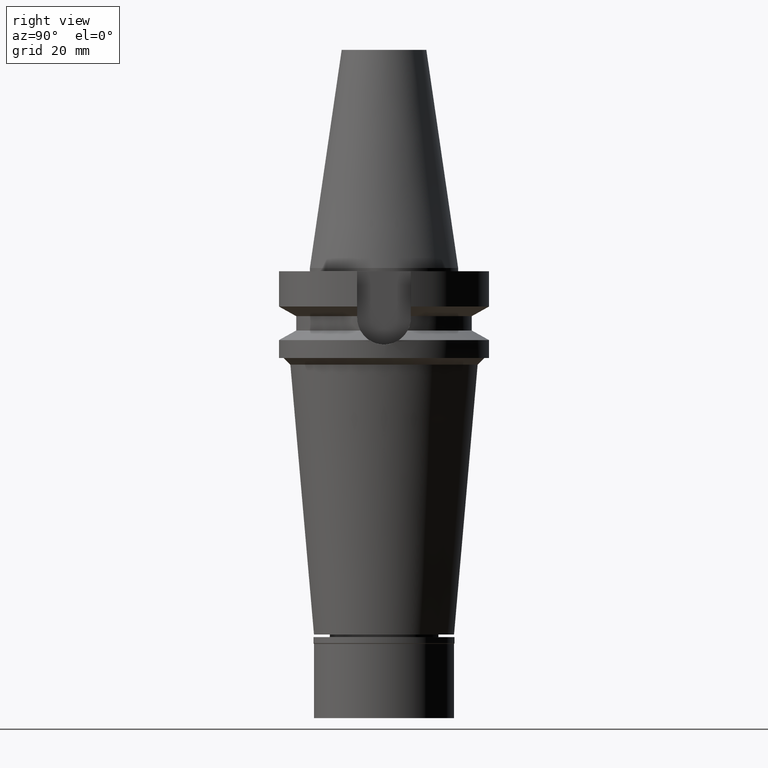
[diagram: clean part render]
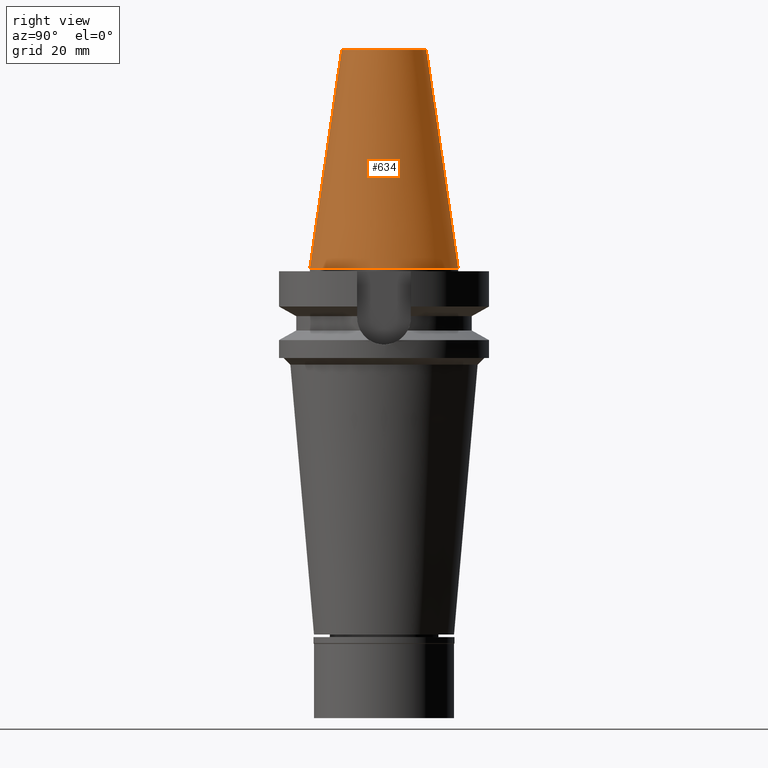
[diagram: same view with one face highlighted and labeled with its STEP entity id]
A machine part, right view. The second image highlights one B-rep face of the part: STEP entity #634.
In plain terms, the highlighted conical surface has half-angle 8.297 deg.
Its self-contained STEP definition (entity closure, byte-faithful):
#25 = VERTEX_POINT ( 'NONE', #2777 ) ;
#212 = DIRECTION ( 'NONE',  ( 0.0000000000000000000, 1.000000000000000000, 0.0000000000000000000 ) ) ;
#233 = VECTOR ( 'NONE', #883, 1000.000000000000114 ) ;
#395 = ORIENTED_EDGE ( 'NONE', *, *, #1185, .T. ) ;
#511 = AXIS2_PLACEMENT_3D ( 'NONE', #3073, #2361, #212 ) ;
#634 = ADVANCED_FACE ( 'NONE', ( #2387 ), #2047, .T. ) ;
#673 = DIRECTION ( 'NONE',  ( 0.0000000000000000000, 0.0000000000000000000, -1.000000000000000000 ) ) ;
#845 = ORIENTED_EDGE ( 'NONE', *, *, #1602, .F. ) ;
#849 = EDGE_CURVE ( 'NONE', #25, #1640, #979, .T. ) ;
#883 = DIRECTION ( 'NONE',  ( 0.0000000000000000000, 0.1443043893539925626, -0.9895333461855498891 ) ) ;
#906 = ORIENTED_EDGE ( 'NONE', *, *, #849, .T. ) ;
#918 = ORIENTED_EDGE ( 'NONE', *, *, #2571, .F. ) ;
#979 = LINE ( 'NONE', #2967, #2253 ) ;
#1114 = LINE ( 'NONE', #2595, #233 ) ;
#1184 = DIRECTION ( 'NONE',  ( 0.0000000000000000000, 0.0000000000000000000, -1.000000000000000000 ) ) ;
#1185 = EDGE_CURVE ( 'NONE', #1888, #25, #2420, .T. ) ;
#1585 = AXIS2_PLACEMENT_3D ( 'NONE', #1627, #1184, #1677 ) ;
#1602 = EDGE_CURVE ( 'NONE', #1888, #2949, #1114, .T. ) ;
#1627 = CARTESIAN_POINT ( 'NONE',  ( 0.0000000000000000000, 1.625106302469000024E-14, 32.70000000000000284 ) ) ;
#1640 = VERTEX_POINT ( 'NONE', #2376 ) ;
#1642 = DIRECTION ( 'NONE',  ( 0.0000000000000000000, 1.000000000000000000, 0.0000000000000000000 ) ) ;
#1677 = DIRECTION ( 'NONE',  ( 0.0000000000000000000, -1.000000000000000000, 0.0000000000000000000 ) ) ;
#1743 = AXIS2_PLACEMENT_3D ( 'NONE', #2924, #673, #1642 ) ;
#1777 = CIRCLE ( 'NONE', #511, 22.22500000000000142 ) ;
#1888 = VERTEX_POINT ( 'NONE', #2798 ) ;
#2011 = DIRECTION ( 'NONE',  ( 0.0000000000000000000, -0.1443043893539925626, -0.9895333461855498891 ) ) ;
#2047 = CONICAL_SURFACE ( 'NONE', #1585, 17.45633449714999941, 0.1448099680379422438 ) ;
#2150 = CARTESIAN_POINT ( 'NONE',  ( 0.0000000000000000000, 22.22500000000000142, 6.394884621841000123E-14 ) ) ;
#2253 = VECTOR ( 'NONE', #2011, 1000.000000000000114 ) ;
#2361 = DIRECTION ( 'NONE',  ( 0.0000000000000000000, 0.0000000000000000000, -1.000000000000000000 ) ) ;
#2376 = CARTESIAN_POINT ( 'NONE',  ( 0.0000000000000000000, -22.22500000000000142, 6.394884621841000123E-14 ) ) ;
#2387 = FACE_OUTER_BOUND ( 'NONE', #2830, .T. ) ;
#2420 = CIRCLE ( 'NONE', #1743, 12.68766899429999917 ) ;
#2571 = EDGE_CURVE ( 'NONE', #2949, #1640, #1777, .T. ) ;
#2595 = CARTESIAN_POINT ( 'NONE',  ( 0.0000000000000000000, 12.68766899429999917, 65.40000000000000568 ) ) ;
#2777 = CARTESIAN_POINT ( 'NONE',  ( 0.0000000000000000000, -12.68766899429999917, 65.40000000000000568 ) ) ;
#2798 = CARTESIAN_POINT ( 'NONE',  ( 0.0000000000000000000, 12.68766899429999917, 65.40000000000000568 ) ) ;
#2830 = EDGE_LOOP ( 'NONE', ( #395, #906, #918, #845 ) ) ;
#2924 = CARTESIAN_POINT ( 'NONE',  ( 0.0000000000000000000, 1.625106302469000024E-14, 65.40000000000000568 ) ) ;
#2949 = VERTEX_POINT ( 'NONE', #2150 ) ;
#2967 = CARTESIAN_POINT ( 'NONE',  ( 0.0000000000000000000, -12.68766899429999917, 65.40000000000000568 ) ) ;
#3073 = CARTESIAN_POINT ( 'NONE',  ( 0.0000000000000000000, 1.625106302469000024E-14, 2.842170943039999687E-14 ) ) ;